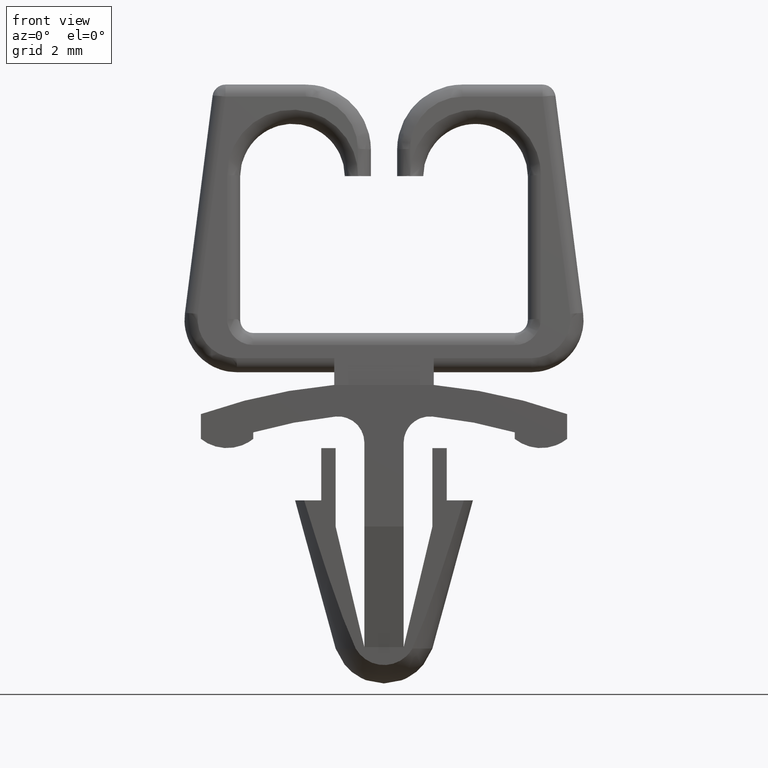
[diagram: clean part render]
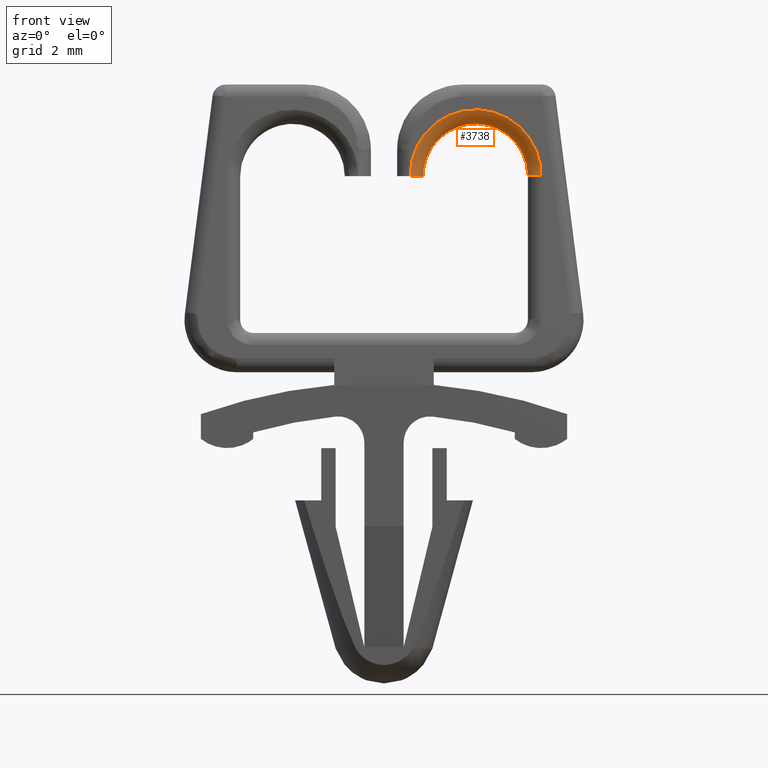
[diagram: same view with one face highlighted and labeled with its STEP entity id]
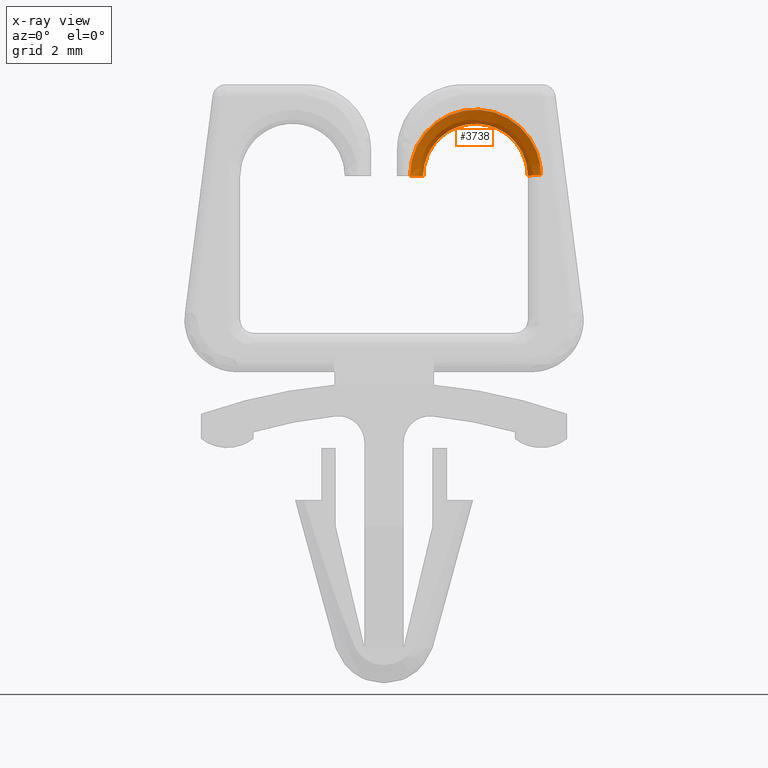
[diagram: x-ray of the same camera — body ghosted, the highlighted face saturated]
A machine part, front view. The second image highlights one B-rep face of the part: STEP entity #3738.
The next image is the same camera in x-ray: the body ghosted, the highlighted face saturated — about 0% of this face is hidden behind the body in this view.
In plain terms, the highlighted face is a freeform B-spline surface patch.
Its self-contained STEP definition (entity closure, byte-faithful):
#2069=CARTESIAN_POINT('',(1.0,-1.817478079133525,6.038521504060430));
#2070=VERTEX_POINT('',#2069);
#3522=CARTESIAN_POINT('',(6.0,-1.817478079133555,6.038521504060430));
#3523=VERTEX_POINT('',#3522);
#3524=CARTESIAN_POINT('',(5.500000000000000,-1.318964193945838,6.0));
#3525=VERTEX_POINT('',#3524);
#3526=CARTESIAN_POINT('',(6.0,-1.817478079133557,6.038521504060427));
#3527=CARTESIAN_POINT('',(5.792893218813444,-1.817478079133557,6.038521504060427));
#3528=CARTESIAN_POINT('',(5.646446609406715,-1.671466742677724,6.027238816742632));
#3529=CARTESIAN_POINT('',(5.500000000000000,-1.525455406221905,6.015956129424837));
#3530=CARTESIAN_POINT('',(5.500000000000000,-1.318964193945838,6.0));
#3538=(BOUNDED_CURVE()B_SPLINE_CURVE(2,(#3526,#3527,#3528,#3529,#3530),.UNSPECIFIED.,.F.,.U.)B_SPLINE_CURVE_WITH_KNOTS((3,2,3),(0.0,0.500000000000000,1.0),.UNSPECIFIED.)CURVE()GEOMETRIC_REPRESENTATION_ITEM()RATIONAL_B_SPLINE_CURVE((1.0,0.923879532511281,1.0,0.923879532511281,1.0))REPRESENTATION_ITEM(''));
#3539=EDGE_CURVE('',#3523,#3525,#3538,.T.);
#3555=CARTESIAN_POINT('',(6.003538869421434,-1.820532715321881,5.998990894048345));
#3556=CARTESIAN_POINT('',(6.003539575234570,-1.819514500335541,6.012167801886611));
#3557=CARTESIAN_POINT('',(6.003540281045685,-1.818496288272761,6.025344671890587));
#3558=CARTESIAN_POINT('',(6.003558737449993,-1.791870845306863,6.369909437507001));
#3559=CARTESIAN_POINT('',(5.936952473458605,-1.766282964993276,6.701046913573205));
#3560=CARTESIAN_POINT('',(5.680737154370049,-1.719058872704988,7.312182597272583));
#3561=CARTESIAN_POINT('',(5.491234612107475,-1.697446801933328,7.591868389146922));
#3562=CARTESIAN_POINT('',(5.018616525292803,-1.661551629643528,8.056394430746932));
#3563=CARTESIAN_POINT('',(4.735695353355221,-1.647283160669042,8.241045318027824));
#3564=CARTESIAN_POINT('',(4.120201820711890,-1.628302679588745,8.486675222593000));
#3565=CARTESIAN_POINT('',(3.787881309262894,-1.623598378951849,8.547554444336571));
#3566=CARTESIAN_POINT('',(3.125281032143827,-1.624486482171411,8.536061336857205));
#3567=CARTESIAN_POINT('',(2.795271963433911,-1.630078525628344,8.463693671631056));
#3568=CARTESIAN_POINT('',(2.188667838818799,-1.650696994959012,8.196866259167326));
#3569=CARTESIAN_POINT('',(1.912321069537052,-1.665715042054569,8.002514943242721));
#3570=CARTESIAN_POINT('',(1.456097843093239,-1.702855087105849,7.521878773753733));
#3571=CARTESIAN_POINT('',(1.276409134915402,-1.724961939525108,7.235789921368632));
#3572=CARTESIAN_POINT('',(1.041542246651012,-1.772844128754839,6.616137683834988));
#3573=CARTESIAN_POINT('',(0.986459712807689,-1.798595054772610,6.282890203254676));
#3574=CARTESIAN_POINT('',(0.997969544188272,-1.824186787300233,5.951702874976524));
#3575=CARTESIAN_POINT('',(6.001772029986542,-1.820530521640552,5.999019282882808));
#3576=CARTESIAN_POINT('',(6.001772384680997,-1.819513039342005,6.012186708873285));
#3577=CARTESIAN_POINT('',(6.001772739374947,-1.818495558506331,6.025354115932479));
#3578=CARTESIAN_POINT('',(6.001782014522683,-1.791888718797252,6.369678133373045));
#3579=CARTESIAN_POINT('',(5.935213251014368,-1.766319103466642,6.700579238927527));
#3580=CARTESIAN_POINT('',(5.679165735034792,-1.719129170633500,7.311272858820816));
#3581=CARTESIAN_POINT('',(5.489792817791934,-1.697533021761552,7.590752602455893));
#3582=CARTESIAN_POINT('',(5.017508399544715,-1.661664504691649,8.054933693941578));
#3583=CARTESIAN_POINT('',(4.734791065597074,-1.647406818066171,8.239445044856288));
#3584=CARTESIAN_POINT('',(4.119745672881503,-1.628440684928794,8.484889270047203));
#3585=CARTESIAN_POINT('',(3.787669833564549,-1.623739988669791,8.545721846872036));
#3586=CARTESIAN_POINT('',(3.125556353251968,-1.624627416530570,8.534237479335177));
#3587=CARTESIAN_POINT('',(2.795790020302450,-1.630215178225875,8.461925225175536));
#3588=CARTESIAN_POINT('',(2.189626792621909,-1.650818078851843,8.195299290189325));
#3589=CARTESIAN_POINT('',(1.913478512198991,-1.665824797778789,8.001094574182975));
#3590=CARTESIAN_POINT('',(1.457576078207168,-1.702937318812964,7.520814598073166));
#3591=CARTESIAN_POINT('',(1.278009416037925,-1.725027927401284,7.234935960098648));
#3592=CARTESIAN_POINT('',(1.043294433620024,-1.772875569109265,6.615730808412547));
#3593=CARTESIAN_POINT('',(0.988241055367005,-1.798608167707507,6.282720506346914));
#3594=CARTESIAN_POINT('',(0.999734043101461,-1.824182084182456,5.951763738890672));
#3595=CARTESIAN_POINT('',(5.500604846993727,-1.819908279986793,6.007071826829536));
#3596=CARTESIAN_POINT('',(5.500403313037313,-1.819098541329053,6.017550804068407));
#3597=CARTESIAN_POINT('',(5.500201697389298,-1.818288474444501,6.028034028950971));
#3598=CARTESIAN_POINT('',(5.494900235363124,-1.796987851852082,6.303689312524774));
#3599=CARTESIAN_POINT('',(5.436436701095357,-1.776682943425522,6.566458875526789));
#3600=CARTESIAN_POINT('',(5.224092294086177,-1.739487021337060,7.047818160052586));
#3601=CARTESIAN_POINT('',(5.070360221135629,-1.722615244687520,7.266158931856203));
#3602=CARTESIAN_POINT('',(4.692679295657194,-1.694751995705329,7.626742373310902));
#3603=CARTESIAN_POINT('',(4.468900274835240,-1.683766221154268,7.768911306916790));
#3604=CARTESIAN_POINT('',(3.985072204515730,-1.669185497376422,7.957603141172396));
#3605=CARTESIAN_POINT('',(3.725169669062674,-1.665591751002365,8.004110475472684));
#3606=CARTESIAN_POINT('',(3.206909889072604,-1.666271548045659,7.995313096628864));
#3607=CARTESIAN_POINT('',(2.948682658145815,-1.670545067420795,7.940008694600564));
#3608=CARTESIAN_POINT('',(2.471384354770364,-1.686394664865530,7.734896132317418));
#3609=CARTESIAN_POINT('',(2.252462374551565,-1.697969300944984,7.585106633119858));
#3610=CARTESIAN_POINT('',(1.887120610988529,-1.726832151157189,7.211587167877354));
#3611=CARTESIAN_POINT('',(1.740871107820555,-1.744114111431832,6.987938134168930));
#3612=CARTESIAN_POINT('',(1.545115333596917,-1.781879988862170,6.499202952494817));
#3613=CARTESIAN_POINT('',(1.495749820117557,-1.802344074289459,6.234373450587824));
#3614=CARTESIAN_POINT('',(1.499871458986176,-1.822849011572172,5.969015277281992));
#3615=CARTESIAN_POINT('',(5.499997863090192,-1.320255389413359,5.968284448411285));
#3616=CARTESIAN_POINT('',(5.499998575394481,-1.319238268372909,5.978810976498034));
#3617=CARTESIAN_POINT('',(5.499999287697749,-1.318221148788474,5.989337489515992));
#3618=CARTESIAN_POINT('',(5.500017914230890,-1.291623753448923,6.264602888560662));
#3619=CARTESIAN_POINT('',(5.446811156025339,-1.266063290542967,6.529140964827766));
#3620=CARTESIAN_POINT('',(5.242133798855038,-1.218890366912679,7.017366026285520));
#3621=CARTESIAN_POINT('',(5.090747221853121,-1.197302066362737,7.240802413258684));
#3622=CARTESIAN_POINT('',(4.713187291953980,-1.161446648823045,7.611906911737253));
#3623=CARTESIAN_POINT('',(4.487169177636504,-1.147194206099781,7.759422299131342));
#3624=CARTESIAN_POINT('',(3.995465610699672,-1.128235061301917,7.955654263898716));
#3625=CARTESIAN_POINT('',(3.729982407541719,-1.123536105142936,8.004290079924992));
#3626=CARTESIAN_POINT('',(3.200644869967237,-1.124423205049067,7.995108302944448));
#3627=CARTESIAN_POINT('',(2.937008280214941,-1.130008898900559,7.937294488759136));
#3628=CARTESIAN_POINT('',(2.452406522009430,-1.150604212321352,7.724128058167339));
#3629=CARTESIAN_POINT('',(2.231640678630436,-1.165605416564359,7.568863172693693));
#3630=CARTESIAN_POINT('',(1.867178579389275,-1.202704397400718,7.184888722915614));
#3631=CARTESIAN_POINT('',(1.723632166886486,-1.224786987935787,6.956337177086055));
#3632=CARTESIAN_POINT('',(1.536009757893135,-1.272617405399810,6.461308826970329));
#3633=CARTESIAN_POINT('',(1.492009037856808,-1.298340808737466,6.195085299681217));
#3634=CARTESIAN_POINT('',(1.501207680901269,-1.323905657170560,5.930506953297400));
#3635=CARTESIAN_POINT('',(5.499995732412640,-1.318501472725694,5.968148294229927));
#3636=CARTESIAN_POINT('',(5.499997154945827,-1.317483981702344,5.978675016977337));
#3637=CARTESIAN_POINT('',(5.499998577474949,-1.316466493587831,5.989201709630602));
#3638=CARTESIAN_POINT('',(5.500035775496573,-1.289859976811270,6.264466472614905));
#3639=CARTESIAN_POINT('',(5.446847175770365,-1.264290436949571,6.529011398345734));
#3640=CARTESIAN_POINT('',(5.242195829990187,-1.217100427445835,7.017261324352432));
#3641=CARTESIAN_POINT('',(5.090817000235163,-1.195504082237692,7.240715625757847));
#3642=CARTESIAN_POINT('',(4.713256952017705,-1.159635156178361,7.611856519725102));
#3643=CARTESIAN_POINT('',(4.487231042261573,-1.145377193502141,7.759390166172108));
#3644=CARTESIAN_POINT('',(3.995500662318881,-1.126410713406530,7.955647691336946));
#3645=CARTESIAN_POINT('',(3.729998621841550,-1.121709898959794,8.004290685019250));
#3646=CARTESIAN_POINT('',(3.200623758806994,-1.122597345142769,7.995107612853615));
#3647=CARTESIAN_POINT('',(2.936968893367365,-1.128185245785596,7.937285331610687));
#3648=CARTESIAN_POINT('',(2.452342209526806,-1.148788514259086,7.724091567089018));
#3649=CARTESIAN_POINT('',(2.231569890070817,-1.163795512476270,7.568807948989957));
#3650=CARTESIAN_POINT('',(1.867110246288059,-1.200908428185175,7.184797238377901));
#3651=CARTESIAN_POINT('',(1.723572822181118,-1.222999214820671,6.956228391430682));
#3652=CARTESIAN_POINT('',(1.535978101215437,-1.270846890059253,6.461177083283011));
#3653=CARTESIAN_POINT('',(1.491995964338410,-1.296579386792752,6.194947993009008));
#3654=CARTESIAN_POINT('',(1.501212374832549,-1.322152949935591,5.930371679788976));
#3662=(BOUNDED_SURFACE()B_SPLINE_SURFACE(3,2,((#3555,#3575,#3595,#3615,#3635),(#3556,#3576,#3596,#3616,#3636),(#3557,#3577,#3597,#3617,#3637),(#3558,#3578,#3598,#3618,#3638),(#3559,#3579,#3599,#3619,#3639),(#3560,#3580,#3600,#3620,#3640),(#3561,#3581,#3601,#3621,#3641),(#3562,#3582,#3602,#3622,#3642),(#3563,#3583,#3603,#3623,#3643),(#3564,#3584,#3604,#3624,#3644),(#3565,#3585,#3605,#3625,#3645),(#3566,#3586,#3606,#3626,#3646),(#3567,#3587,#3607,#3627,#3647),(#3568,#3588,#3608,#3628,#3648),(#3569,#3589,#3609,#3629,#3649),(#3570,#3590,#3610,#3630,#3650),(#3571,#3591,#3611,#3631,#3651),(#3572,#3592,#3612,#3632,#3652),(#3573,#3593,#3613,#3633,#3653),(#3574,#3594,#3614,#3634,#3654)),.UNSPECIFIED.,.F.,.F.,.U.)B_SPLINE_SURFACE_WITH_KNOTS((4,2,2,2,2,2,2,2,2,4),(3,1,1,3),(0.0,0.039648625141007,1.036820710784894,2.033992796428780,3.031164882072666,4.028336967716553,5.025509053360438,6.022681139004325,7.019853224648212,8.017025310292098),(0.0,0.004387833821051,0.878032854030491,0.882401645635741),.UNSPECIFIED.)GEOMETRIC_REPRESENTATION_ITEM()RATIONAL_B_SPLINE_SURFACE(((1.002937760450860,1.001468880225430,0.707536805957749,1.001462505614317,1.002925011228634),(1.002939200301289,1.001469600150645,0.707393464367349,1.001463222415217,1.002926444830434),(1.002940640151717,1.001470320075859,0.707250122776948,1.001463939216117,1.002927878432234),(1.002978292573190,1.001489146286595,0.703501707059746,1.001482683725317,1.002965367450633),(1.003014778275142,1.001507389137571,0.699869441901248,1.001500847406406,1.003001694812812),(1.003082584370508,1.001541292185254,0.693119134121521,1.001534603322458,1.003069206644915),(1.003113869929939,1.001556934964970,0.690004559331793,1.001550178216013,1.003100356432026),(1.003166088988699,1.001583044494349,0.684805989547017,1.001576174435885,1.003152348871770),(1.003186991712708,1.001593495856354,0.682725058330777,1.001586580441320,1.003173160882640),(1.003214848980910,1.001607424490455,0.679951780600362,1.001600448628269,1.003200897256539),(1.003221785018641,1.001610892509320,0.679261276462097,1.001603901596709,1.003207803193419),(1.003220477718764,1.001610238859382,0.679391422232594,1.001603250783466,1.003206501566931),(1.003212235284467,1.001606117642234,0.680211982214084,1.001599147451476,1.003198294902952),(1.003181990747665,1.001590995373832,0.683222919961887,1.001584090810332,1.003168181620664),(1.003160008588824,1.001580004294412,0.685411312274425,1.001573147429734,1.003146294859468),(1.003106032766127,1.001553016383064,0.690784773375476,1.001546276639875,1.003092553279750),(1.003074070477193,1.001537035238597,0.693966718692952,1.001530364849995,1.003060729699989),(1.003005406973795,1.001502703486898,0.700802384110105,1.001496182090407,1.002992364180814),(1.002968739118814,1.001484369559407,0.704452783169499,1.001477927728054,1.002955855456109),(1.002932597863964,1.001466298931982,0.708050757547244,1.001459935523104,1.002919871046208)))REPRESENTATION_ITEM('')SURFACE());
#3663=CARTESIAN_POINT('',(1.499999999999986,-1.318964193945838,6.0));
#3664=VERTEX_POINT('',#3663);
#3665=CARTESIAN_POINT('',(1.000296798872930,-1.820454739000275,6.0));
#3666=VERTEX_POINT('',#3665);
#3667=CARTESIAN_POINT('',(1.499999999999986,-1.318964193945838,6.0));
#3668=CARTESIAN_POINT('',(1.499999999999998,-1.352018358561318,6.000000000000001));
#3669=CARTESIAN_POINT('',(1.496778429926208,-1.384524465040575,6.0));
#3670=CARTESIAN_POINT('',(1.487308448428650,-1.432494665085760,6.000000000000001));
#3671=CARTESIAN_POINT('',(1.483373122518658,-1.448352264087442,6.0));
#3672=CARTESIAN_POINT('',(1.473909296413613,-1.479796428989134,6.000000000000001));
#3673=CARTESIAN_POINT('',(1.468352100231412,-1.495432035187326,5.999999999999999));
#3674=CARTESIAN_POINT('',(1.449618814560212,-1.540930136652328,5.999999999999998));
#3675=CARTESIAN_POINT('',(1.434329081275100,-1.569709814356924,6.000000000000001));
#3676=CARTESIAN_POINT('',(1.398193874481079,-1.624189892176119,5.999999999999996));
#3677=CARTESIAN_POINT('',(1.377139172798728,-1.650014763415132,6.000000000000001));
#3678=CARTESIAN_POINT('',(1.331111533600229,-1.696325764023718,5.999999999999999));
#3679=CARTESIAN_POINT('',(1.305991695782355,-1.717109916727595,6.000000000000002));
#3680=CARTESIAN_POINT('',(1.251441768415469,-1.753824937862009,5.999999999999999));
#3681=CARTESIAN_POINT('',(1.222321525888417,-1.769470762367031,6.0));
#3682=CARTESIAN_POINT('',(1.162173188255615,-1.794565447694614,5.999999999999999));
#3683=CARTESIAN_POINT('',(1.130745673828653,-1.804214801461979,6.000000000000002));
#3684=CARTESIAN_POINT('',(1.066054767679232,-1.817199324977838,5.999999999999999));
#3685=CARTESIAN_POINT('',(1.033354305819086,-1.820454739000321,6.0));
#3686=CARTESIAN_POINT('',(1.000296798872930,-1.820454739000275,6.0));
#3687=B_SPLINE_CURVE_WITH_KNOTS('',3,(#3667,#3668,#3669,#3670,#3671,#3672,#3673,#3674,#3675,#3676,#3677,#3678,#3679,#3680,#3681,#3682,#3683,#3684,#3685,#3686),.UNSPECIFIED.,.F.,.U.,(4,2,2,2,2,2,2,2,2,4),(0.0,0.125000000000000,0.187500000000000,0.250000000000000,0.375000000000000,0.500000000000000,0.625000000000000,0.750000000000000,0.875000000000000,1.0),.UNSPECIFIED.);
#3688=EDGE_CURVE('',#3664,#3666,#3687,.T.);
#3689=ORIENTED_EDGE('',*,*,#3688,.F.);
#3690=CARTESIAN_POINT('',(5.500000000000000,-1.318964193945838,6.0));
#3691=CARTESIAN_POINT('',(5.500000000000001,-1.125782493270016,8.0));
#3692=CARTESIAN_POINT('',(3.500000000000000,-1.125782493270016,8.0));
#3693=CARTESIAN_POINT('',(1.500000000000001,-1.125782493270016,8.0));
#3694=CARTESIAN_POINT('',(1.499999999999986,-1.318964193945838,6.0));
#3702=(BOUNDED_CURVE()B_SPLINE_CURVE(2,(#3690,#3691,#3692,#3693,#3694),.UNSPECIFIED.,.F.,.U.)B_SPLINE_CURVE_WITH_KNOTS((3,2,3),(0.0,0.500000000000000,1.0),.UNSPECIFIED.)CURVE()GEOMETRIC_REPRESENTATION_ITEM()RATIONAL_B_SPLINE_CURVE((1.0,0.707106781186547,1.0,0.707106781186547,1.0))REPRESENTATION_ITEM(''));
#3703=EDGE_CURVE('',#3525,#3664,#3702,.T.);
#3704=ORIENTED_EDGE('',*,*,#3703,.F.);
#3705=ORIENTED_EDGE('',*,*,#3539,.F.);
#3706=CARTESIAN_POINT('',(1.0,-1.817478079133525,6.038521504060430));
#3707=CARTESIAN_POINT('',(1.000000000000000,-1.705944572245831,7.481897177034496));
#3708=CARTESIAN_POINT('',(2.250000000000001,-1.650177818801985,8.203585013521531));
#3709=CARTESIAN_POINT('',(3.500000000000001,-1.594411065358138,8.925272850008561));
#3710=CARTESIAN_POINT('',(4.750000000000002,-1.650177818801985,8.203585013521527));
#3711=CARTESIAN_POINT('',(6.0,-1.705944572245831,7.481897177034495));
#3712=CARTESIAN_POINT('',(6.0,-1.817478079133555,6.038521504060430));
#3720=(BOUNDED_CURVE()B_SPLINE_CURVE(2,(#3706,#3707,#3708,#3709,#3710,#3711,#3712),.UNSPECIFIED.,.F.,.U.)B_SPLINE_CURVE_WITH_KNOTS((3,2,2,3),(0.0,0.333333333333333,0.666666666666667,1.0),.UNSPECIFIED.)CURVE()GEOMETRIC_REPRESENTATION_ITEM()RATIONAL_B_SPLINE_CURVE((1.0,0.866025403784437,1.0,0.866025403784437,1.0,0.866025403784437,1.0))REPRESENTATION_ITEM(''));
#3721=EDGE_CURVE('',#2070,#3523,#3720,.T.);
#3722=ORIENTED_EDGE('',*,*,#3721,.F.);
#3723=CARTESIAN_POINT('',(1.000296798872930,-1.820454739000275,6.0));
#3724=CARTESIAN_POINT('',(1.0,-1.818966497419097,6.019259608648435));
#3725=CARTESIAN_POINT('',(1.0,-1.817478079133525,6.038521504060430));
#3733=(BOUNDED_CURVE()B_SPLINE_CURVE(2,(#3723,#3724,#3725),.UNSPECIFIED.,.F.,.U.)CURVE()GEOMETRIC_REPRESENTATION_ITEM()QUASI_UNIFORM_CURVE()RATIONAL_B_SPLINE_CURVE((1.0,0.999970319676812,1.0))REPRESENTATION_ITEM(''));
#3734=EDGE_CURVE('',#3666,#2070,#3733,.T.);
#3735=ORIENTED_EDGE('',*,*,#3734,.F.);
#3736=EDGE_LOOP('',(#3689,#3704,#3705,#3722,#3735));
#3737=FACE_OUTER_BOUND('',#3736,.T.);
#3738=ADVANCED_FACE('',(#3737),#3662,.T.);